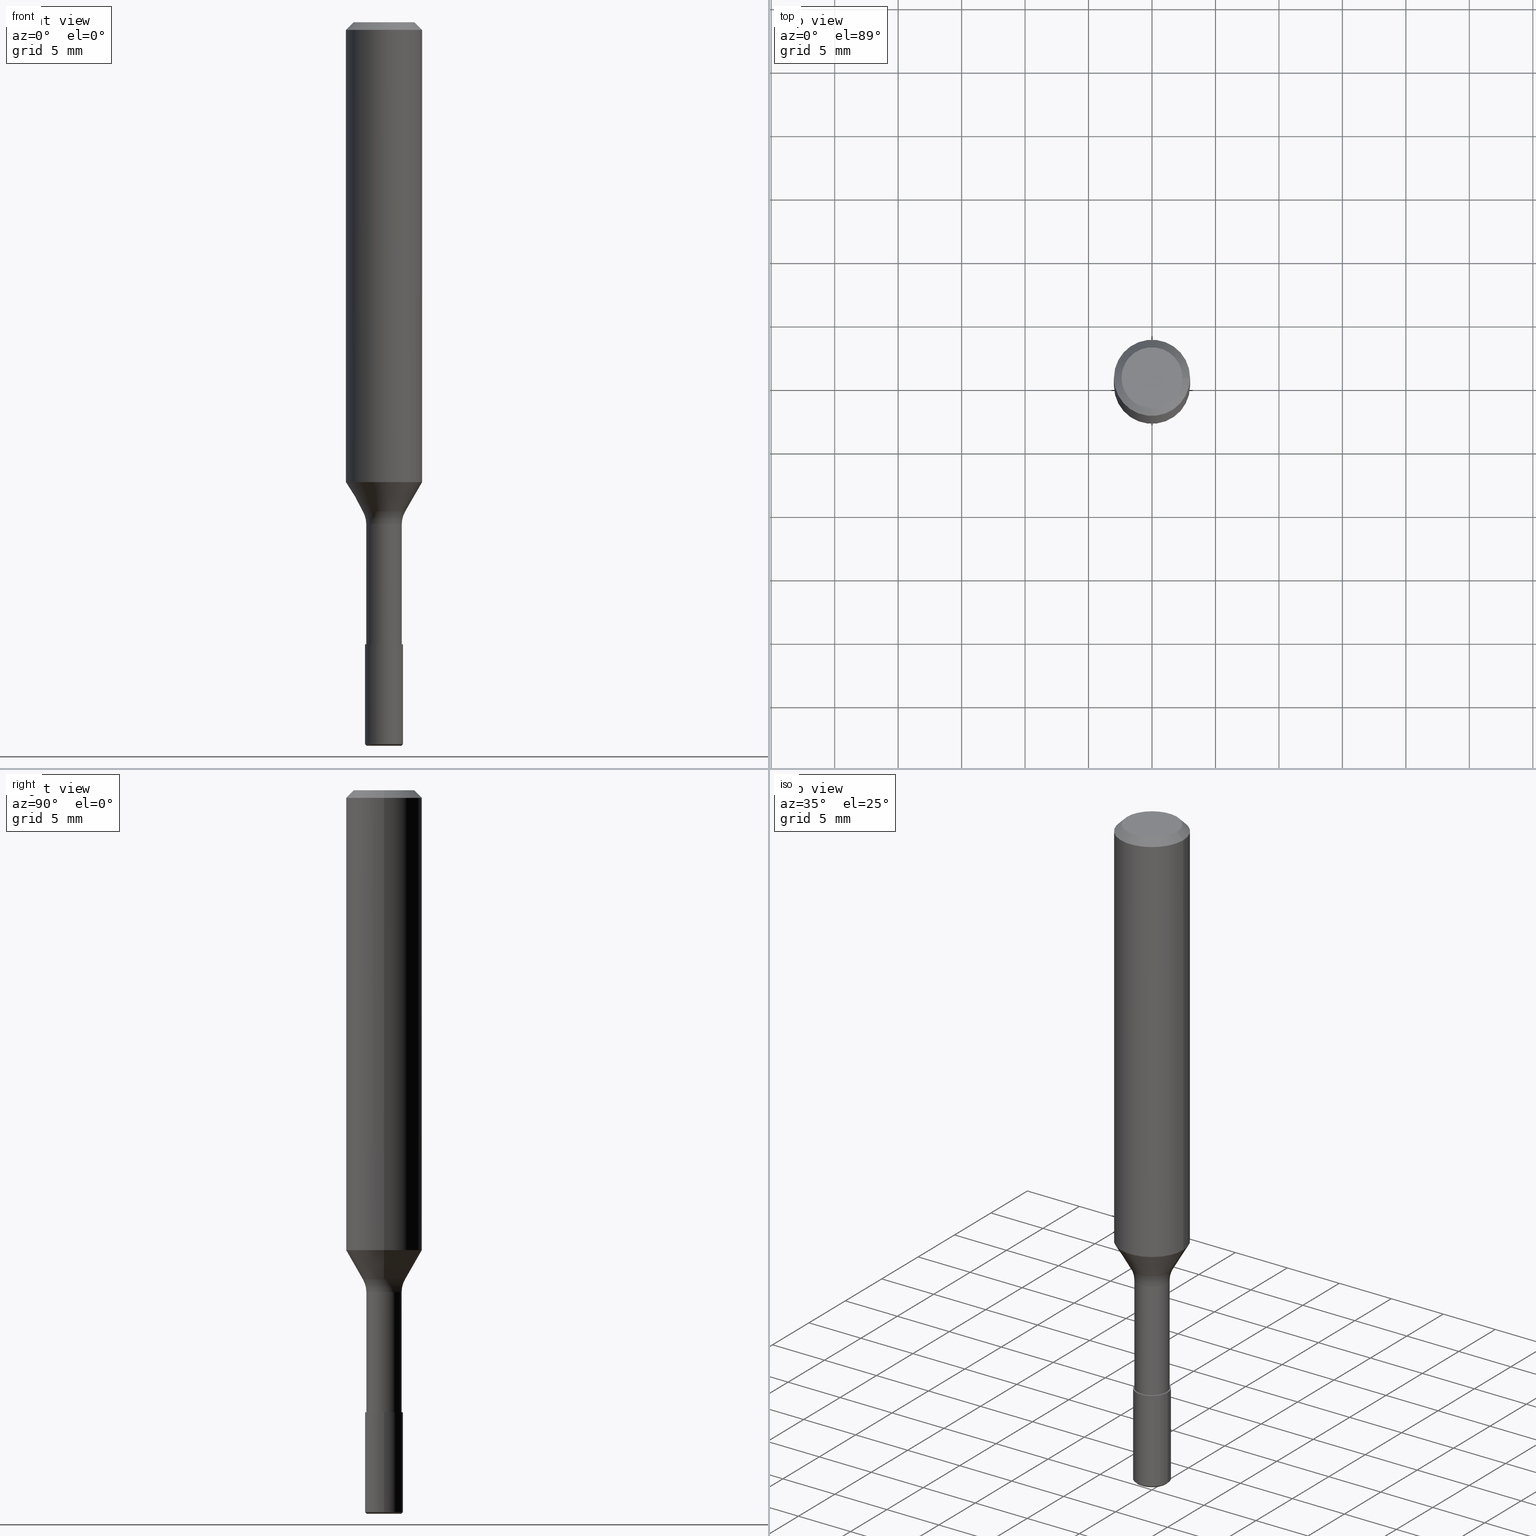
[diagram: canonical four-view strip — front | top / right | iso, engineering-drawing reading convention]
A machine part, canonical four-view strip (front | top / right | iso — engineering-drawing reading convention). The complete STEP part file that produces these views, byte-faithful:
ISO-10303-21;
HEADER;
FILE_DESCRIPTION (( 'STEP AP203' ),
    '1' );
FILE_NAME ('733.030.99.STEP',
    '2019-01-09T01:37:43',
    ( '' ),
    ( '' ),
    'SwSTEP 2.0',
    'SolidWorks 2019',
    '' );
FILE_SCHEMA (( 'CONFIG_CONTROL_DESIGN' ));
ENDSEC;

DATA;
#1 = CC_DESIGN_APPROVAL ( #161, ( #80 ) ) ;
#2 = VERTEX_POINT ( 'NONE', #264 ) ;
#3 = ADVANCED_FACE ( 'NONE', ( #23, #49 ), #6, .T. ) ;
#4 = VERTEX_POINT ( 'NONE', #155 ) ;
#5 = DIRECTION ( 'NONE',  ( 6.982962677686266711E-15, 0.0000000000000000000, 1.000000000000000000 ) ) ;
#6 = CONICAL_SURFACE ( 'NONE', #217, 1.667949192431122274, 0.5235987755983003700 ) ;
#7 = ORIENTED_EDGE ( 'NONE', *, *, #171, .F. ) ;
#8 = CARTESIAN_POINT ( 'NONE',  ( -7.525997073249809467E-31, 0.0000000000000000000, -1.077765616204535070E-16 ) ) ;
#9 = PERSON_AND_ORGANIZATION ( #237, #58 ) ;
#10 = DIRECTION ( 'NONE',  ( -1.000000000000000000, 0.0000000000000000000, 1.012977212249213953E-14 ) ) ;
#11 = PERSON_AND_ORGANIZATION_ROLE ( 'creator' ) ;
#12 = DIRECTION ( 'NONE',  ( 0.0000000000000000000, 0.0000000000000000000, 1.000000000000000000 ) ) ;
#13 = CIRCLE ( 'NONE', #52, 1.500000000000016431 ) ;
#14 = PERSON_AND_ORGANIZATION_ROLE ( 'creator' ) ;
#15 = CYLINDRICAL_SURFACE ( 'NONE', #158, 1.500000000000016431 ) ;
#16 = ORIENTED_EDGE ( 'NONE', *, *, #232, .F. ) ;
#17 = ADVANCED_FACE ( 'NONE', ( #96 ), #176, .T. ) ;
#18 = FACE_OUTER_BOUND ( 'NONE', #214, .T. ) ;
#19 = CIRCLE ( 'NONE', #263, 1.667949192431122274 ) ;
#20 = APPLICATION_CONTEXT ( 'configuration controlled 3d designs of mechanical parts and assemblies' ) ;
#21 = APPROVAL ( #246, 'UNSPECIFIED' ) ;
#22 = DIRECTION ( 'NONE',  ( 1.000000000000000000, 0.0000000000000000000, -7.373952358995601206E-15 ) ) ;
#23 = FACE_OUTER_BOUND ( 'NONE', #83, .T. ) ;
#24 = MANIFOLD_SOLID_BREP ( 'K�rper in Z minus drehen[1]', #119 ) ;
#25 = AXIS2_PLACEMENT_3D ( 'NONE', #26, #173, #22 ) ;
#26 = CARTESIAN_POINT ( 'NONE',  ( -4.237064420644371283E-13, 0.0000000000000000000, -56.99999999999999289 ) ) ;
#27 = DIRECTION ( 'NONE',  ( -1.000000000000000000, 0.0000000000000000000, 9.251858538542816028E-15 ) ) ;
#28 = PERSON_AND_ORGANIZATION_ROLE ( 'design_owner' ) ;
#29 = APPROVAL_STATUS ( 'not_yet_approved' ) ;
#30 = FACE_OUTER_BOUND ( 'NONE', #131, .T. ) ;
#31 = AXIS2_PLACEMENT_3D ( 'NONE', #130, #204, #10 ) ;
#32 = LOCAL_TIME ( 2, 37, 43.00000000000000000, #273 ) ;
#33 = CALENDAR_DATE ( 2019, 9, 1 ) ;
#34 = FACE_OUTER_BOUND ( 'NONE', #151, .T. ) ;
#35 = DATE_TIME_ROLE ( 'creation_date' ) ;
#36 = CYLINDRICAL_SURFACE ( 'NONE', #72, 1.400000000000000133 ) ;
#37 = EDGE_LOOP ( 'NONE', ( #280 ) ) ;
#38 = DIRECTION ( 'NONE',  ( 1.000000000000000000, 0.0000000000000000000, -6.938893903907152647E-15 ) ) ;
#39 = DESIGN_CONTEXT ( 'detailed design', #77, 'design' ) ;
#40 = SECURITY_CLASSIFICATION ( '', '', #143 ) ;
#41 = FACE_OUTER_BOUND ( 'NONE', #252, .T. ) ;
#42 = EDGE_LOOP ( 'NONE', ( #170 ) ) ;
#43 = FACE_OUTER_BOUND ( 'NONE', #65, .T. ) ;
#44 = ORIENTED_EDGE ( 'NONE', *, *, #134, .F. ) ;
#45 = AXIS2_PLACEMENT_3D ( 'NONE', #69, #221, #265 ) ;
#46 = VERTEX_POINT ( 'NONE', #153 ) ;
#47 = CC_DESIGN_PERSON_AND_ORGANIZATION_ASSIGNMENT ( #180, #226, ( #40 ) ) ;
#48 = CARTESIAN_POINT ( 'NONE',  ( 2.399999999999998135, 0.0000000000000000000, -1.675911042644702748E-14 ) ) ;
#49 = FACE_BOUND ( 'NONE', #135, .T. ) ;
#50 = CC_DESIGN_PERSON_AND_ORGANIZATION_ASSIGNMENT ( #247, #28, ( #216 ) ) ;
#51 = CARTESIAN_POINT ( 'NONE',  ( -4.223805938587122050E-13, 0.0000000000000000000, -56.86999999999999744 ) ) ;
#52 = AXIS2_PLACEMENT_3D ( 'NONE', #84, #235, #201 ) ;
#53 =( GEOMETRIC_REPRESENTATION_CONTEXT ( 3 ) GLOBAL_UNCERTAINTY_ASSIGNED_CONTEXT ( ( #93 ) ) GLOBAL_UNIT_ASSIGNED_CONTEXT ( ( #192, #220, #122 ) ) REPRESENTATION_CONTEXT ( 'NONE', 'WORKASPACE' ) );
#54 = EDGE_LOOP ( 'NONE', ( #44 ) ) ;
#55 = ADVANCED_BREP_SHAPE_REPRESENTATION ( '733.030.99', ( #24, #136, #128 ), #53 ) ;
#56 = CALENDAR_DATE ( 2019, 9, 1 ) ;
#57 = AXIS2_PLACEMENT_3D ( 'NONE', #203, #60, #146 ) ;
#58 = ORGANIZATION ( 'UNSPECIFIED', 'UNSPECIFIED', '' ) ;
#59 = COORDINATED_UNIVERSAL_TIME_OFFSET ( 1, 0, .AHEAD. ) ;
#60 = DIRECTION ( 'NONE',  ( -6.982962677686266711E-15, 0.0000000000000000000, -1.000000000000000000 ) ) ;
#61 = EDGE_LOOP ( 'NONE', ( #209 ) ) ;
#62 = FACE_OUTER_BOUND ( 'NONE', #86, .T. ) ;
#63 = ORIENTED_EDGE ( 'NONE', *, *, #262, .F. ) ;
#64 = FACE_OUTER_BOUND ( 'NONE', #42, .T. ) ;
#65 = EDGE_LOOP ( 'NONE', ( #205 ) ) ;
#66 = EDGE_CURVE ( 'NONE', #223, #223, #261, .T. ) ;
#67 = CLOSED_SHELL ( 'NONE', ( #249, #271, #68, #185 ) ) ;
#68 = ADVANCED_FACE ( 'NONE', ( #87, #30 ), #15, .T. ) ;
#69 = CARTESIAN_POINT ( 'NONE',  ( -4.237064420644370273E-13, 0.0000000000000000000, -56.99999999999998579 ) ) ;
#70 = FACE_BOUND ( 'NONE', #150, .T. ) ;
#71 = DIRECTION ( 'NONE',  ( -6.982962677686266711E-15, 0.0000000000000000000, -1.000000000000000000 ) ) ;
#72 = AXIS2_PLACEMENT_3D ( 'NONE', #162, #251, #166 ) ;
#73 = PERSON_AND_ORGANIZATION ( #237, #58 ) ;
#74 = ADVANCED_FACE ( 'NONE', ( #270 ), #104, .T. ) ;
#75 = MECHANICAL_CONTEXT ( 'NONE', #20, 'mechanical' ) ;
#76 = DIRECTION ( 'NONE',  ( 7.373952358995601206E-15, -0.0000000000000000000, 1.000000000000000000 ) ) ;
#77 = APPLICATION_CONTEXT ( 'configuration controlled 3d designs of mechanical parts and assemblies' ) ;
#78 = APPROVAL_ROLE ( '' ) ;
#79 = DIRECTION ( 'NONE',  ( 6.982962677686266711E-15, 0.0000000000000000000, 1.000000000000000000 ) ) ;
#80 = PRODUCT_DEFINITION_FORMATION_WITH_SPECIFIED_SOURCE ( 'ANY', '', #216, .NOT_KNOWN. ) ;
#81 = APPLICATION_PROTOCOL_DEFINITION ( 'international standard', 'config_control_design', 1994, #77 ) ;
#82 = DIRECTION ( 'NONE',  ( 1.000000000000000000, 0.0000000000000000000, -6.975033976323412122E-15 ) ) ;
#83 = EDGE_LOOP ( 'NONE', ( #112 ) ) ;
#84 = CARTESIAN_POINT ( 'NONE',  ( -3.647148231924723565E-13, 0.0000000000000000000, -48.99999999999999289 ) ) ;
#85 = DIRECTION ( 'NONE',  ( -6.982962677686266711E-15, 0.0000000000000000000, -1.000000000000000000 ) ) ;
#86 = EDGE_LOOP ( 'NONE', ( #63 ) ) ;
#87 = FACE_OUTER_BOUND ( 'NONE', #54, .T. ) ;
#88 = SHAPE_DEFINITION_REPRESENTATION ( #152, #55 ) ;
#89 = DIRECTION ( 'NONE',  ( 6.982962677686266711E-15, 0.0000000000000000000, 1.000000000000000000 ) ) ;
#90 = FACE_BOUND ( 'NONE', #276, .T. ) ;
#91 = CC_DESIGN_DATE_AND_TIME_ASSIGNMENT ( #98, #35, ( #149 ) ) ;
#92 = PLANE ( 'NONE',  #25 ) ;
#93 = UNCERTAINTY_MEASURE_WITH_UNIT (LENGTH_MEASURE( 1.000000000000000082E-05 ), #192, 'distance_accuracy_value', 'NONE');
#94 = CIRCLE ( 'NONE', #279, 2.399999999999998135 ) ;
#95 = AXIS2_PLACEMENT_3D ( 'NONE', #178, #243, #124 ) ;
#96 = FACE_OUTER_BOUND ( 'NONE', #97, .T. ) ;
#97 = EDGE_LOOP ( 'NONE', ( #236 ) ) ;
#98 = DATE_AND_TIME ( #101, #211 ) ;
#99 = DIRECTION ( 'NONE',  ( 1.000000000000000000, 0.0000000000000000000, -6.982962677686266711E-15 ) ) ;
#100 = AXIS2_PLACEMENT_3D ( 'NONE', #245, #71, #266 ) ;
#101 = CALENDAR_DATE ( 2019, 9, 1 ) ;
#102 = CC_DESIGN_PERSON_AND_ORGANIZATION_ASSIGNMENT ( #125, #11, ( #80 ) ) ;
#103 = DATE_AND_TIME ( #56, #32 ) ;
#104 = PLANE ( 'NONE',  #113 ) ;
#105 = DIRECTION ( 'NONE',  ( 1.000000000000000000, 0.0000000000000000000, 0.0000000000000000000 ) ) ;
#106 = FACE_OUTER_BOUND ( 'NONE', #37, .T. ) ;
#107 = AXIS2_PLACEMENT_3D ( 'NONE', #51, #117, #27 ) ;
#108 = EDGE_CURVE ( 'NONE', #4, #4, #197, .T. ) ;
#109 = ORIENTED_EDGE ( 'NONE', *, *, #168, .T. ) ;
#110 = COORDINATED_UNIVERSAL_TIME_OFFSET ( 1, 0, .AHEAD. ) ;
#111 = DIRECTION ( 'NONE',  ( 6.982962677686266711E-15, 0.0000000000000000000, 1.000000000000000000 ) ) ;
#112 = ORIENTED_EDGE ( 'NONE', *, *, #108, .F. ) ;
#113 = AXIS2_PLACEMENT_3D ( 'NONE', #8, #79, #99 ) ;
#114 = CARTESIAN_POINT ( 'NONE',  ( -2.760777028502898631E-13, 0.0000000000000000000, -39.53589838486225005 ) ) ;
#115 = ORIENTED_EDGE ( 'NONE', *, *, #139, .T. ) ;
#116 = DIRECTION ( 'NONE',  ( -1.000000000000000000, 0.0000000000000000000, 6.982962677686265922E-15 ) ) ;
#117 = DIRECTION ( 'NONE',  ( -1.019883235173059248E-14, 0.0000000000000000000, -1.000000000000000000 ) ) ;
#118 = DIRECTION ( 'NONE',  ( 1.000000000000000000, 0.0000000000000000000, -6.982962677686266711E-15 ) ) ;
#119 = CLOSED_SHELL ( 'NONE', ( #74, #210, #193, #3, #222, #121, #17 ) ) ;
#120 = FACE_OUTER_BOUND ( 'NONE', #167, .T. ) ;
#121 = ADVANCED_FACE ( 'NONE', ( #34, #62 ), #36, .T. ) ;
#122 =( NAMED_UNIT ( * ) SI_UNIT ( $, .STERADIAN. ) SOLID_ANGLE_UNIT ( ) );
#123 = LOCAL_TIME ( 2, 37, 43.00000000000000000, #227 ) ;
#124 = DIRECTION ( 'NONE',  ( -1.000000000000000000, 0.0000000000000000000, 4.956352788505163465E-15 ) ) ;
#125 = PERSON_AND_ORGANIZATION ( #237, #58 ) ;
#126 = EDGE_CURVE ( 'NONE', #238, #238, #94, .T. ) ;
#127 = APPROVAL_DATE_TIME ( #103, #21 ) ;
#128 = AXIS2_PLACEMENT_3D ( 'NONE', #250, #12, #105 ) ;
#129 = PERSON_AND_ORGANIZATION ( #237, #58 ) ;
#130 = CARTESIAN_POINT ( 'NONE',  ( -4.237064420644370273E-13, 0.0000000000000000000, -56.99999999999998579 ) ) ;
#131 = EDGE_LOOP ( 'NONE', ( #187 ) ) ;
#132 = TOROIDAL_SURFACE ( 'NONE', #274, 3.400000000000000355, 2.000000000000000888 ) ;
#133 = CARTESIAN_POINT ( 'NONE',  ( -3.980288726281171773E-13, 0.0000000000000000000, -56.99999999999999289 ) ) ;
#134 = EDGE_CURVE ( 'NONE', #141, #141, #13, .T. ) ;
#135 = EDGE_LOOP ( 'NONE', ( #16 ) ) ;
#136 = MANIFOLD_SOLID_BREP ( 'K�rper in Z minus drehen[2]', #67 ) ;
#137 = CARTESIAN_POINT ( 'NONE',  ( -2.690947401726035711E-13, 0.0000000000000000000, -38.53589838486225005 ) ) ;
#138 = VERTEX_POINT ( 'NONE', #175 ) ;
#139 = EDGE_CURVE ( 'NONE', #46, #46, #172, .T. ) ;
#140 = VERTEX_POINT ( 'NONE', #196 ) ;
#141 = VERTEX_POINT ( 'NONE', #241 ) ;
#142 = APPROVAL_DATE_TIME ( #157, #161 ) ;
#143 = SECURITY_CLASSIFICATION_LEVEL ( 'unclassified' ) ;
#144 = PERSON_AND_ORGANIZATION_ROLE ( 'design_supplier' ) ;
#145 = DATE_AND_TIME ( #33, #123 ) ;
#146 = DIRECTION ( 'NONE',  ( -1.000000000000000000, 0.0000000000000000000, 4.956352788505162676E-15 ) ) ;
#147 = ORIENTED_EDGE ( 'NONE', *, *, #126, .F. ) ;
#148 = CARTESIAN_POINT ( 'NONE',  ( -4.189777606611783692E-15, 0.0000000000000000000, -0.6000000000000033085 ) ) ;
#149 = PRODUCT_DEFINITION ( 'UNKNOWN', '', #80, #39 ) ;
#150 = EDGE_LOOP ( 'NONE', ( #255 ) ) ;
#151 = EDGE_LOOP ( 'NONE', ( #109 ) ) ;
#152 = PRODUCT_DEFINITION_SHAPE ( 'NONE', 'NONE',  #149 ) ;
#153 = CARTESIAN_POINT ( 'NONE',  ( -1.370000000000445972, 0.0000000000000000000, -56.99999999999997158 ) ) ;
#154 = APPROVAL_PERSON_ORGANIZATION ( #181, #21, #159 ) ;
#155 = CARTESIAN_POINT ( 'NONE',  ( 2.999999999999764633, 0.0000000000000000000, -36.22871870788980431 ) ) ;
#156 = DIRECTION ( 'NONE',  ( -6.982962677686266711E-15, 0.0000000000000000000, -1.000000000000000000 ) ) ;
#157 = DATE_AND_TIME ( #267, #208 ) ;
#158 = AXIS2_PLACEMENT_3D ( 'NONE', #160, #76, #38 ) ;
#159 = APPROVAL_ROLE ( '' ) ;
#160 = CARTESIAN_POINT ( 'NONE',  ( 6.056509442254067229E-14, 0.0000000000000000000, 8.673266236417621400 ) ) ;
#161 = APPROVAL ( #29, 'UNSPECIFIED' ) ;
#162 = CARTESIAN_POINT ( 'NONE',  ( 0.0000000000000000000, 0.0000000000000000000, 0.0000000000000000000 ) ) ;
#163 = AXIS2_PLACEMENT_3D ( 'NONE', #275, #215, #118 ) ;
#164 = EDGE_LOOP ( 'NONE', ( #224 ) ) ;
#165 = PERSON_AND_ORGANIZATION ( #237, #58 ) ;
#166 = DIRECTION ( 'NONE',  ( -1.000000000000000000, 0.0000000000000000000, 6.982962677686267499E-15 ) ) ;
#167 = EDGE_LOOP ( 'NONE', ( #257 ) ) ;
#168 = EDGE_CURVE ( 'NONE', #239, #239, #188, .T. ) ;
#169 = CC_DESIGN_SECURITY_CLASSIFICATION ( #40, ( #80 ) ) ;
#170 = ORIENTED_EDGE ( 'NONE', *, *, #232, .T. ) ;
#171 = EDGE_CURVE ( 'NONE', #2, #2, #207, .T. ) ;
#172 = CIRCLE ( 'NONE', #31, 1.370000000000022311 ) ;
#173 = DIRECTION ( 'NONE',  ( 7.373952358995601206E-15, -0.0000000000000000000, 1.000000000000000000 ) ) ;
#174 = CARTESIAN_POINT ( 'NONE',  ( -1.400000000000276135, 0.0000000000000000000, -39.53589838486224295 ) ) ;
#175 = CARTESIAN_POINT ( 'NONE',  ( -1.667949192431391392, 0.0000000000000000000, -38.53589838486223584 ) ) ;
#176 = PLANE ( 'NONE',  #100 ) ;
#177 = CC_DESIGN_PERSON_AND_ORGANIZATION_ASSIGNMENT ( #73, #144, ( #80 ) ) ;
#178 = CARTESIAN_POINT ( 'NONE',  ( -3.421651712066269931E-13, 0.0000000000000000000, -48.99999999999998579 ) ) ;
#179 = LOCAL_TIME ( 2, 37, 43.00000000000000000, #59 ) ;
#180 = PERSON_AND_ORGANIZATION ( #237, #58 ) ;
#181 = PERSON_AND_ORGANIZATION ( #237, #58 ) ;
#182 = PLANE ( 'NONE',  #163 ) ;
#183 = APPROVAL_PERSON_ORGANIZATION ( #165, #161, #269 ) ;
#184 = APPROVAL_PERSON_ORGANIZATION ( #129, #242, #78 ) ;
#185 = ADVANCED_FACE ( 'NONE', ( #106 ), #182, .T. ) ;
#186 = DIRECTION ( 'NONE',  ( 1.000000000000000000, 0.0000000000000000000, -6.938893903907188146E-15 ) ) ;
#187 = ORIENTED_EDGE ( 'NONE', *, *, #66, .F. ) ;
#188 = CIRCLE ( 'NONE', #57, 1.400000000000000133 ) ;
#189 = CONICAL_SURFACE ( 'NONE', #45, 1.370000000000022311, 0.7853981633974932430 ) ;
#190 = ORIENTED_EDGE ( 'NONE', *, *, #168, .F. ) ;
#191 = AXIS2_PLACEMENT_3D ( 'NONE', #148, #231, #82 ) ;
#192 =( LENGTH_UNIT ( ) NAMED_UNIT ( * ) SI_UNIT ( .MILLI., .METRE. ) );
#193 = ADVANCED_FACE ( 'NONE', ( #41, #282 ), #213, .T. ) ;
#194 = CARTESIAN_POINT ( 'NONE',  ( -1.500000000000447642, 0.0000000000000000000, -56.86999999999998323 ) ) ;
#195 = CC_DESIGN_PERSON_AND_ORGANIZATION_ASSIGNMENT ( #9, #14, ( #149 ) ) ;
#196 = CARTESIAN_POINT ( 'NONE',  ( -1.400000000000342082, 0.0000000000000000000, -48.99999999999997868 ) ) ;
#197 = CIRCLE ( 'NONE', #240, 3.000000000000017319 ) ;
#198 = COORDINATED_UNIVERSAL_TIME_OFFSET ( 1, 0, .AHEAD. ) ;
#199 = PRODUCT_RELATED_PRODUCT_CATEGORY ( 'detail', '', ( #216 ) ) ;
#200 = AXIS2_PLACEMENT_3D ( 'NONE', #278, #85, #253 ) ;
#201 = DIRECTION ( 'NONE',  ( 1.000000000000000000, 0.0000000000000000000, -9.251858538542869670E-15 ) ) ;
#202 = APPROVAL_STATUS ( 'not_yet_approved' ) ;
#203 = CARTESIAN_POINT ( 'NONE',  ( -2.760777028502898631E-13, 0.0000000000000000000, -39.53589838486225005 ) ) ;
#204 = DIRECTION ( 'NONE',  ( -1.019883235173059248E-14, 0.0000000000000000000, -1.000000000000000000 ) ) ;
#205 = ORIENTED_EDGE ( 'NONE', *, *, #171, .T. ) ;
#206 = DIRECTION ( 'NONE',  ( 1.000000000000000000, 0.0000000000000000000, -6.938893903907188146E-15 ) ) ;
#207 = CIRCLE ( 'NONE', #191, 3.000000000000000000 ) ;
#208 = LOCAL_TIME ( 2, 37, 43.00000000000000000, #198 ) ;
#209 = ORIENTED_EDGE ( 'NONE', *, *, #108, .T. ) ;
#210 = ADVANCED_FACE ( 'NONE', ( #43, #90 ), #283, .T. ) ;
#211 = LOCAL_TIME ( 2, 37, 43.00000000000000000, #110 ) ;
#212 = CALENDAR_DATE ( 2019, 9, 1 ) ;
#213 = CYLINDRICAL_SURFACE ( 'NONE', #272, 3.000000000000017319 ) ;
#214 = EDGE_LOOP ( 'NONE', ( #190 ) ) ;
#215 = DIRECTION ( 'NONE',  ( 6.982962677686266711E-15, 0.0000000000000000000, 1.000000000000000000 ) ) ;
#216 = PRODUCT ( '733.030.99', '733.030.99', '', ( #75 ) ) ;
#217 = AXIS2_PLACEMENT_3D ( 'NONE', #244, #5, #225 ) ;
#218 = CC_DESIGN_APPROVAL ( #242, ( #40 ) ) ;
#219 = FACE_OUTER_BOUND ( 'NONE', #233, .T. ) ;
#220 =( NAMED_UNIT ( * ) PLANE_ANGLE_UNIT ( ) SI_UNIT ( $, .RADIAN. ) );
#221 = DIRECTION ( 'NONE',  ( 1.019883235173059248E-14, 0.0000000000000000000, 1.000000000000000000 ) ) ;
#222 = ADVANCED_FACE ( 'NONE', ( #64, #18 ), #132, .F. ) ;
#223 = VERTEX_POINT ( 'NONE', #194 ) ;
#224 = ORIENTED_EDGE ( 'NONE', *, *, #126, .T. ) ;
#225 = DIRECTION ( 'NONE',  ( 1.000000000000000000, 0.0000000000000000000, -8.320270108220061374E-15 ) ) ;
#226 = PERSON_AND_ORGANIZATION_ROLE ( 'classification_officer' ) ;
#227 = COORDINATED_UNIVERSAL_TIME_OFFSET ( 1, 0, .AHEAD. ) ;
#228 = CC_DESIGN_APPROVAL ( #21, ( #149 ) ) ;
#229 = CARTESIAN_POINT ( 'NONE',  ( -2.529837905975886012E-13, 0.0000000000000000000, -36.22871870788978299 ) ) ;
#230 = DATE_TIME_ROLE ( 'classification_date' ) ;
#231 = DIRECTION ( 'NONE',  ( 6.982962677686266711E-15, 0.0000000000000000000, 1.000000000000000000 ) ) ;
#232 = EDGE_CURVE ( 'NONE', #138, #138, #19, .T. ) ;
#233 = EDGE_LOOP ( 'NONE', ( #115 ) ) ;
#234 = APPROVAL_DATE_TIME ( #281, #242 ) ;
#235 = DIRECTION ( 'NONE',  ( 6.982962677686266711E-15, 0.0000000000000000000, 1.000000000000000000 ) ) ;
#236 = ORIENTED_EDGE ( 'NONE', *, *, #262, .T. ) ;
#237 = PERSON ( 'UNSPECIFIED', 'UNSPECIFIED', 'UNSPECIFIED', ('UNSPECIFIED'), ('UNSPECIFIED'), ('UNSPECIFIED') ) ;
#238 = VERTEX_POINT ( 'NONE', #48 ) ;
#239 = VERTEX_POINT ( 'NONE', #174 ) ;
#240 = AXIS2_PLACEMENT_3D ( 'NONE', #229, #111, #206 ) ;
#241 = CARTESIAN_POINT ( 'NONE',  ( 1.499999999999651834, 0.0000000000000000000, -49.00000000000000711 ) ) ;
#242 = APPROVAL ( #202, 'UNSPECIFIED' ) ;
#243 = DIRECTION ( 'NONE',  ( -6.982962677686266711E-15, 0.0000000000000000000, -1.000000000000000000 ) ) ;
#244 = CARTESIAN_POINT ( 'NONE',  ( -2.690947401726035711E-13, 0.0000000000000000000, -38.53589838486225005 ) ) ;
#245 = CARTESIAN_POINT ( 'NONE',  ( -3.421651712066270941E-13, 0.0000000000000000000, -49.00000000000000000 ) ) ;
#246 = APPROVAL_STATUS ( 'not_yet_approved' ) ;
#247 = PERSON_AND_ORGANIZATION ( #237, #58 ) ;
#248 = DIRECTION ( 'NONE',  ( 1.000000000000000000, 0.0000000000000000000, -6.982962677686266711E-15 ) ) ;
#249 = ADVANCED_FACE ( 'NONE', ( #219 ), #92, .F. ) ;
#250 = CARTESIAN_POINT ( 'NONE',  ( 0.0000000000000000000, 0.0000000000000000000, 0.0000000000000000000 ) ) ;
#251 = DIRECTION ( 'NONE',  ( -6.982962677686266711E-15, 0.0000000000000000000, -1.000000000000000000 ) ) ;
#252 = EDGE_LOOP ( 'NONE', ( #7 ) ) ;
#253 = DIRECTION ( 'NONE',  ( -1.000000000000000000, 0.0000000000000000000, 6.982962677686266711E-15 ) ) ;
#254 = CC_DESIGN_DATE_AND_TIME_ASSIGNMENT ( #145, #230, ( #40 ) ) ;
#255 = ORIENTED_EDGE ( 'NONE', *, *, #139, .F. ) ;
#256 = DIRECTION ( 'NONE',  ( -6.982962677686266711E-15, 0.0000000000000000000, -1.000000000000000000 ) ) ;
#257 = ORIENTED_EDGE ( 'NONE', *, *, #66, .T. ) ;
#258 = CIRCLE ( 'NONE', #95, 1.399999999999999911 ) ;
#259 = APPLICATION_PROTOCOL_DEFINITION ( 'international standard', 'config_control_design', 1994, #20 ) ;
#260 = DIRECTION ( 'NONE',  ( -1.000000000000000000, 0.0000000000000000000, 8.320270108220061374E-15 ) ) ;
#261 = CIRCLE ( 'NONE', #107, 1.500000000000025091 ) ;
#262 = EDGE_CURVE ( 'NONE', #140, #140, #258, .T. ) ;
#263 = AXIS2_PLACEMENT_3D ( 'NONE', #137, #156, #260 ) ;
#264 = CARTESIAN_POINT ( 'NONE',  ( 2.999999999999995559, 0.0000000000000000000, -0.6000000000000241807 ) ) ;
#265 = DIRECTION ( 'NONE',  ( 1.000000000000000000, 0.0000000000000000000, -1.012977212249213953E-14 ) ) ;
#266 = DIRECTION ( 'NONE',  ( -1.000000000000000000, 0.0000000000000000000, 6.982962677686266711E-15 ) ) ;
#267 = CALENDAR_DATE ( 2019, 9, 1 ) ;
#268 = CARTESIAN_POINT ( 'NONE',  ( 0.0000000000000000000, 0.0000000000000000000, 0.0000000000000000000 ) ) ;
#269 = APPROVAL_ROLE ( '' ) ;
#270 = FACE_OUTER_BOUND ( 'NONE', #164, .T. ) ;
#271 = ADVANCED_FACE ( 'NONE', ( #120, #70 ), #189, .T. ) ;
#272 = AXIS2_PLACEMENT_3D ( 'NONE', #133, #89, #186 ) ;
#273 = COORDINATED_UNIVERSAL_TIME_OFFSET ( 1, 0, .AHEAD. ) ;
#274 = AXIS2_PLACEMENT_3D ( 'NONE', #114, #256, #116 ) ;
#275 = CARTESIAN_POINT ( 'NONE',  ( 1.499999999999650724, 0.0000000000000000000, -49.00000000000000711 ) ) ;
#276 = EDGE_LOOP ( 'NONE', ( #147 ) ) ;
#277 = DIRECTION ( 'NONE',  ( 6.982962677686266711E-15, 0.0000000000000000000, 1.000000000000000000 ) ) ;
#278 = CARTESIAN_POINT ( 'NONE',  ( 0.0000000000000000000, 0.0000000000000000000, 0.0000000000000000000 ) ) ;
#279 = AXIS2_PLACEMENT_3D ( 'NONE', #268, #277, #248 ) ;
#280 = ORIENTED_EDGE ( 'NONE', *, *, #134, .T. ) ;
#281 = DATE_AND_TIME ( #212, #179 ) ;
#282 = FACE_OUTER_BOUND ( 'NONE', #61, .T. ) ;
#283 = CONICAL_SURFACE ( 'NONE', #200, 2.399999999999998135, 0.7853981633974472798 ) ;
ENDSEC;
END-ISO-10303-21;
19833